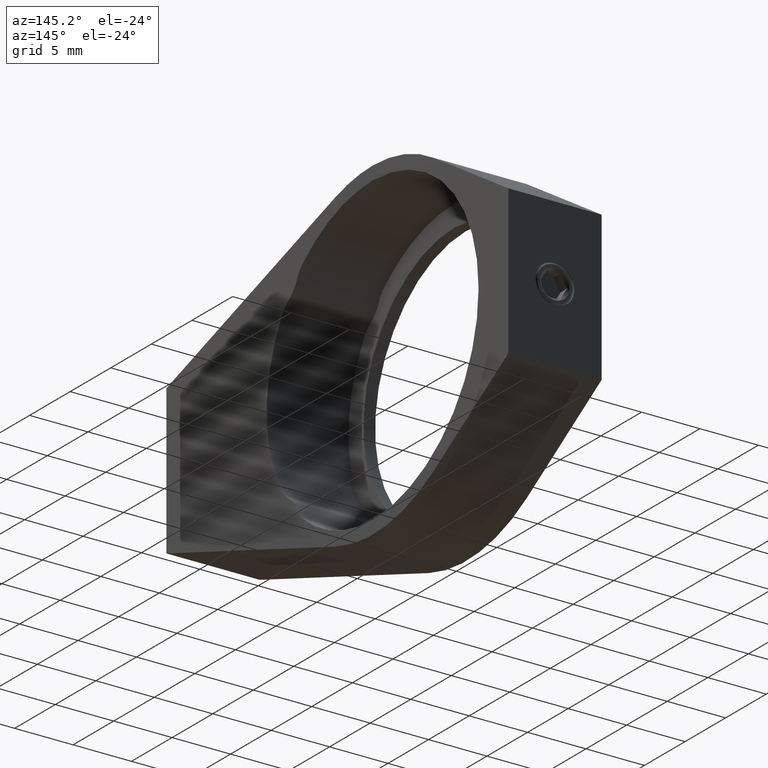
[diagram: clean part render]
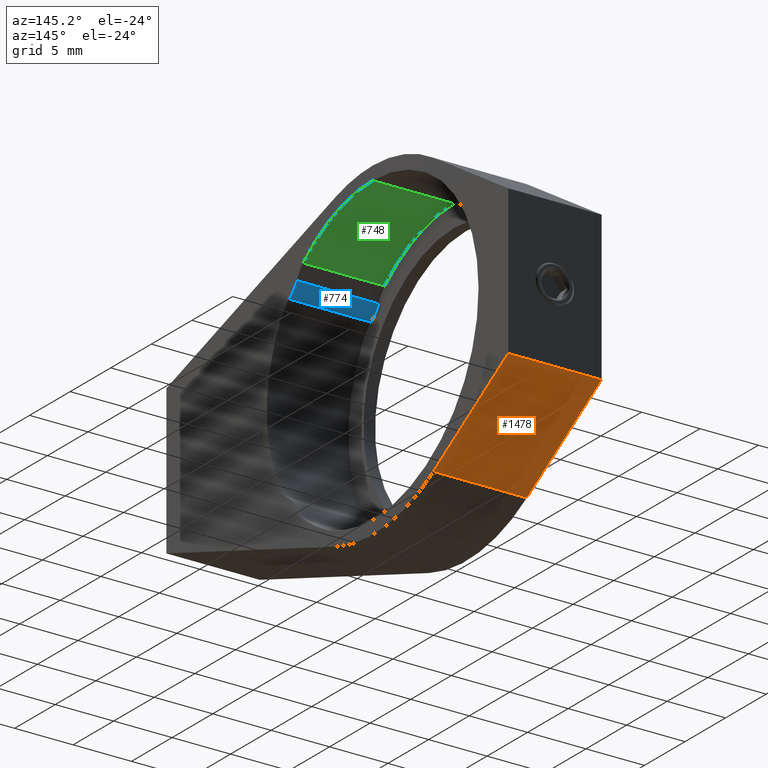
[diagram: same view with three faces highlighted in distinct colors, each labeled with its STEP entity id]
A machine part, auxiliary view with three faces highlighted in distinct colors.
Their STEP definitions:

[orange] entity #1478 — the highlighted planar face has unit normal (0, -0.5272, 0.8497).
#69 = DIRECTION ( 'NONE',  ( -1.000000000000000000, -0.0000000000000000000, -0.0000000000000000000 ) ) ;
#74 = CARTESIAN_POINT ( 'NONE',  ( -15.54903037869330085, 12.90133408966692485, 30.03360767228176798 ) ) ;
#86 = VECTOR ( 'NONE', #1054, 1000.000000000000000 ) ;
#93 = ORIENTED_EDGE ( 'NONE', *, *, #765, .T. ) ;
#164 = EDGE_CURVE ( 'NONE', #168, #1309, #451, .T. ) ;
#168 = VERTEX_POINT ( 'NONE', #321 ) ;
#176 = VECTOR ( 'NONE', #912, 1000.000000000000000 ) ;
#194 = DIRECTION ( 'NONE',  ( 0.0000000000000000000, -0.5271924125790212745, 0.8497459385717068825 ) ) ;
#228 = EDGE_CURVE ( 'NONE', #596, #168, #334, .T. ) ;
#302 = VECTOR ( 'NONE', #69, 1000.000000000000000 ) ;
#305 = AXIS2_PLACEMENT_3D ( 'NONE', #1215, #194, #515 ) ;
#321 = CARTESIAN_POINT ( 'NONE',  ( -7.549030378693300847, 22.11520183104482129, 35.75000000000000000 ) ) ;
#334 = LINE ( 'NONE', #790, #798 ) ;
#404 = FACE_OUTER_BOUND ( 'NONE', #1032, .T. ) ;
#432 = CARTESIAN_POINT ( 'NONE',  ( -7.549030378693300847, 22.11520183104482129, 35.75000000000000000 ) ) ;
#443 = ORIENTED_EDGE ( 'NONE', *, *, #164, .F. ) ;
#451 = LINE ( 'NONE', #432, #176 ) ;
#501 = LINE ( 'NONE', #1165, #86 ) ;
#515 = DIRECTION ( 'NONE',  ( 0.0000000000000000000, -0.8497459385717068825, -0.5271924125790212745 ) ) ;
#596 = VERTEX_POINT ( 'NONE', #720 ) ;
#680 = DIRECTION ( 'NONE',  ( -0.0000000000000000000, 0.8497459385717068825, 0.5271924125790212745 ) ) ;
#720 = CARTESIAN_POINT ( 'NONE',  ( -7.549030378693300847, 12.90133408966692485, 30.03360767228176798 ) ) ;
#765 = EDGE_CURVE ( 'NONE', #596, #1077, #1452, .T. ) ;
#790 = CARTESIAN_POINT ( 'NONE',  ( -7.549030378693300847, 22.11520183104482129, 35.75000000000000000 ) ) ;
#798 = VECTOR ( 'NONE', #680, 1000.000000000000000 ) ;
#912 = DIRECTION ( 'NONE',  ( -1.000000000000000000, -0.0000000000000000000, -0.0000000000000000000 ) ) ;
#928 = CARTESIAN_POINT ( 'NONE',  ( -15.54903037869330085, 22.11520183104482129, 35.75000000000000000 ) ) ;
#1012 = EDGE_CURVE ( 'NONE', #1077, #1309, #501, .T. ) ;
#1032 = EDGE_LOOP ( 'NONE', ( #1327, #443, #1305, #93 ) ) ;
#1054 = DIRECTION ( 'NONE',  ( -0.0000000000000000000, 0.8497459385717068825, 0.5271924125790212745 ) ) ;
#1077 = VERTEX_POINT ( 'NONE', #74 ) ;
#1092 = CARTESIAN_POINT ( 'NONE',  ( -7.549030378693300847, 12.90133408966692485, 30.03360767228176798 ) ) ;
#1165 = CARTESIAN_POINT ( 'NONE',  ( -15.54903037869330085, 22.11520183104482129, 35.75000000000000000 ) ) ;
#1215 = CARTESIAN_POINT ( 'NONE',  ( -7.549030378693300847, 22.11520183104482129, 35.75000000000000000 ) ) ;
#1304 = PLANE ( 'NONE',  #305 ) ;
#1305 = ORIENTED_EDGE ( 'NONE', *, *, #228, .F. ) ;
#1309 = VERTEX_POINT ( 'NONE', #928 ) ;
#1327 = ORIENTED_EDGE ( 'NONE', *, *, #1012, .T. ) ;
#1452 = LINE ( 'NONE', #1092, #302 ) ;
#1478 = ADVANCED_FACE ( 'NONE', ( #404 ), #1304, .F. ) ;

[blue] entity #774 — the highlighted cylindrical surface (edge-blend (fillet) strip) has radius 2.5 mm, axis along (1, -0, -0).
#23 = VERTEX_POINT ( 'NONE', #987 ) ;
#30 = ORIENTED_EDGE ( 'NONE', *, *, #1448, .F. ) ;
#75 = CYLINDRICAL_SURFACE ( 'NONE', #950, 2.500000000000002220 ) ;
#83 = FACE_OUTER_BOUND ( 'NONE', #1073, .T. ) ;
#147 = DIRECTION ( 'NONE',  ( -1.000000000000000000, -0.0000000000000000000, -0.0000000000000000000 ) ) ;
#183 = AXIS2_PLACEMENT_3D ( 'NONE', #1179, #147, #762 ) ;
#242 = VERTEX_POINT ( 'NONE', #956 ) ;
#311 = DIRECTION ( 'NONE',  ( 0.0000000000000000000, 0.0000000000000000000, -1.000000000000000000 ) ) ;
#325 = CIRCLE ( 'NONE', #901, 2.500000000000002220 ) ;
#398 = VECTOR ( 'NONE', #1361, 1000.000000000000000 ) ;
#399 = DIRECTION ( 'NONE',  ( 1.000000000000000000, -0.0000000000000000000, 0.0000000000000000000 ) ) ;
#414 = VERTEX_POINT ( 'NONE', #529 ) ;
#421 = DIRECTION ( 'NONE',  ( 0.0000000000000000000, 0.0000000000000000000, -1.000000000000000000 ) ) ;
#529 = CARTESIAN_POINT ( 'NONE',  ( -14.54903037869330262, -3.935454295990940654, 50.87480914028755308 ) ) ;
#535 = CARTESIAN_POINT ( 'NONE',  ( -49.19123164894455158, -4.850022637962606353, 49.78486903306989575 ) ) ;
#650 = LINE ( 'NONE', #535, #684 ) ;
#684 = VECTOR ( 'NONE', #1444, 1000.000000000000000 ) ;
#685 = EDGE_CURVE ( 'NONE', #23, #1409, #325, .T. ) ;
#719 = EDGE_CURVE ( 'NONE', #23, #242, #650, .T. ) ;
#762 = DIRECTION ( 'NONE',  ( 0.0000000000000000000, 6.938893903907222067E-15, -1.000000000000000000 ) ) ;
#774 = ADVANCED_FACE ( 'NONE', ( #83 ), #75, .T. ) ;
#901 = AXIS2_PLACEMENT_3D ( 'NONE', #1429, #399, #421 ) ;
#907 = CARTESIAN_POINT ( 'NONE',  ( -49.19123164894455158, -3.935454295990940654, 50.87480914028755308 ) ) ;
#929 = ORIENTED_EDGE ( 'NONE', *, *, #719, .T. ) ;
#950 = AXIS2_PLACEMENT_3D ( 'NONE', #1329, #1338, #311 ) ;
#956 = CARTESIAN_POINT ( 'NONE',  ( -14.54903037869330262, -4.850022637962606353, 49.78486903306989575 ) ) ;
#987 = CARTESIAN_POINT ( 'NONE',  ( -7.549030378693300847, -4.850022637962606353, 49.78486903306989575 ) ) ;
#1073 = EDGE_LOOP ( 'NONE', ( #30, #1131, #1446, #929 ) ) ;
#1131 = ORIENTED_EDGE ( 'NONE', *, *, #1278, .T. ) ;
#1143 = CIRCLE ( 'NONE', #183, 2.500000000000002220 ) ;
#1179 = CARTESIAN_POINT ( 'NONE',  ( -14.54903037869330262, -6.228673704363632879, 51.87037166723541048 ) ) ;
#1278 = EDGE_CURVE ( 'NONE', #414, #1409, #1472, .T. ) ;
#1329 = CARTESIAN_POINT ( 'NONE',  ( -49.19123164894455158, -6.228673704363632879, 51.87037166723541048 ) ) ;
#1338 = DIRECTION ( 'NONE',  ( 1.000000000000000000, -0.0000000000000000000, -0.0000000000000000000 ) ) ;
#1361 = DIRECTION ( 'NONE',  ( 1.000000000000000000, -0.0000000000000000000, -0.0000000000000000000 ) ) ;
#1377 = CARTESIAN_POINT ( 'NONE',  ( -7.549030378693300847, -3.935454295990940654, 50.87480914028755308 ) ) ;
#1409 = VERTEX_POINT ( 'NONE', #1377 ) ;
#1429 = CARTESIAN_POINT ( 'NONE',  ( -7.549030378693300847, -6.228673704363632879, 51.87037166723541048 ) ) ;
#1444 = DIRECTION ( 'NONE',  ( -1.000000000000000000, 0.0000000000000000000, 0.0000000000000000000 ) ) ;
#1446 = ORIENTED_EDGE ( 'NONE', *, *, #685, .F. ) ;
#1448 = EDGE_CURVE ( 'NONE', #414, #242, #1143, .T. ) ;
#1472 = LINE ( 'NONE', #907, #398 ) ;

[green] entity #748 — the highlighted cylindrical surface (partial cylindrical patch) has radius 13.05 mm, axis along (1, -0, -0).
#18 = EDGE_CURVE ( 'NONE', #1195, #658, #1233, .T. ) ;
#73 = CARTESIAN_POINT ( 'NONE',  ( -7.549030378693300847, 5.415201831044820224, 42.10000000000000142 ) ) ;
#131 = CIRCLE ( 'NONE', #978, 13.05000000000000249 ) ;
#192 = VERTEX_POINT ( 'NONE', #654 ) ;
#196 = DIRECTION ( 'NONE',  ( -1.000000000000000000, 0.0000000000000000000, 0.0000000000000000000 ) ) ;
#222 = ORIENTED_EDGE ( 'NONE', *, *, #1120, .T. ) ;
#248 = CARTESIAN_POINT ( 'NONE',  ( -49.19123164894455158, 5.415201831044822001, 55.15000000000000568 ) ) ;
#265 = DIRECTION ( 'NONE',  ( 1.000000000000000000, -0.0000000000000000000, -0.0000000000000000000 ) ) ;
#303 = CARTESIAN_POINT ( 'NONE',  ( -7.549030378693300847, -3.153379912507453753, 51.94286070733822669 ) ) ;
#351 = EDGE_CURVE ( 'NONE', #192, #1195, #377, .T. ) ;
#377 = LINE ( 'NONE', #248, #728 ) ;
#397 = CARTESIAN_POINT ( 'NONE',  ( -49.19123164894455158, -3.153379912507451976, 51.94286070733822669 ) ) ;
#407 = CYLINDRICAL_SURFACE ( 'NONE', #875, 13.05000000000000249 ) ;
#412 = CARTESIAN_POINT ( 'NONE',  ( -14.54903037869330262, 5.415201831044820224, 42.10000000000000142 ) ) ;
#517 = DIRECTION ( 'NONE',  ( 1.000000000000000000, -0.0000000000000000000, 0.0000000000000000000 ) ) ;
#635 = CARTESIAN_POINT ( 'NONE',  ( -49.19123164894455158, 5.415201831044820224, 42.10000000000000142 ) ) ;
#642 = LINE ( 'NONE', #397, #1379 ) ;
#645 = DIRECTION ( 'NONE',  ( 0.0000000000000000000, 0.0000000000000000000, -1.000000000000000000 ) ) ;
#654 = CARTESIAN_POINT ( 'NONE',  ( -14.54903037869330262, 5.415201831044822001, 55.15000000000000568 ) ) ;
#658 = VERTEX_POINT ( 'NONE', #303 ) ;
#702 = EDGE_LOOP ( 'NONE', ( #1226, #1395, #730, #222 ) ) ;
#711 = VERTEX_POINT ( 'NONE', #858 ) ;
#728 = VECTOR ( 'NONE', #265, 1000.000000000000000 ) ;
#730 = ORIENTED_EDGE ( 'NONE', *, *, #18, .T. ) ;
#741 = EDGE_CURVE ( 'NONE', #711, #192, #131, .T. ) ;
#748 = ADVANCED_FACE ( 'NONE', ( #982 ), #407, .F. ) ;
#791 = CARTESIAN_POINT ( 'NONE',  ( -7.549030378693300847, 5.415201831044822001, 55.15000000000000568 ) ) ;
#858 = CARTESIAN_POINT ( 'NONE',  ( -14.54903037869330262, -3.153379912507453753, 51.94286070733822669 ) ) ;
#869 = DIRECTION ( 'NONE',  ( 0.0000000000000000000, 0.0000000000000000000, -1.000000000000000000 ) ) ;
#871 = AXIS2_PLACEMENT_3D ( 'NONE', #73, #517, #1107 ) ;
#875 = AXIS2_PLACEMENT_3D ( 'NONE', #635, #887, #869 ) ;
#887 = DIRECTION ( 'NONE',  ( 1.000000000000000000, -0.0000000000000000000, -0.0000000000000000000 ) ) ;
#978 = AXIS2_PLACEMENT_3D ( 'NONE', #412, #1116, #645 ) ;
#982 = FACE_OUTER_BOUND ( 'NONE', #702, .T. ) ;
#1107 = DIRECTION ( 'NONE',  ( 0.0000000000000000000, 0.0000000000000000000, -1.000000000000000000 ) ) ;
#1116 = DIRECTION ( 'NONE',  ( -1.000000000000000000, -0.0000000000000000000, -0.0000000000000000000 ) ) ;
#1120 = EDGE_CURVE ( 'NONE', #658, #711, #642, .T. ) ;
#1195 = VERTEX_POINT ( 'NONE', #791 ) ;
#1226 = ORIENTED_EDGE ( 'NONE', *, *, #741, .T. ) ;
#1233 = CIRCLE ( 'NONE', #871, 13.05000000000000249 ) ;
#1379 = VECTOR ( 'NONE', #196, 1000.000000000000000 ) ;
#1395 = ORIENTED_EDGE ( 'NONE', *, *, #351, .T. ) ;